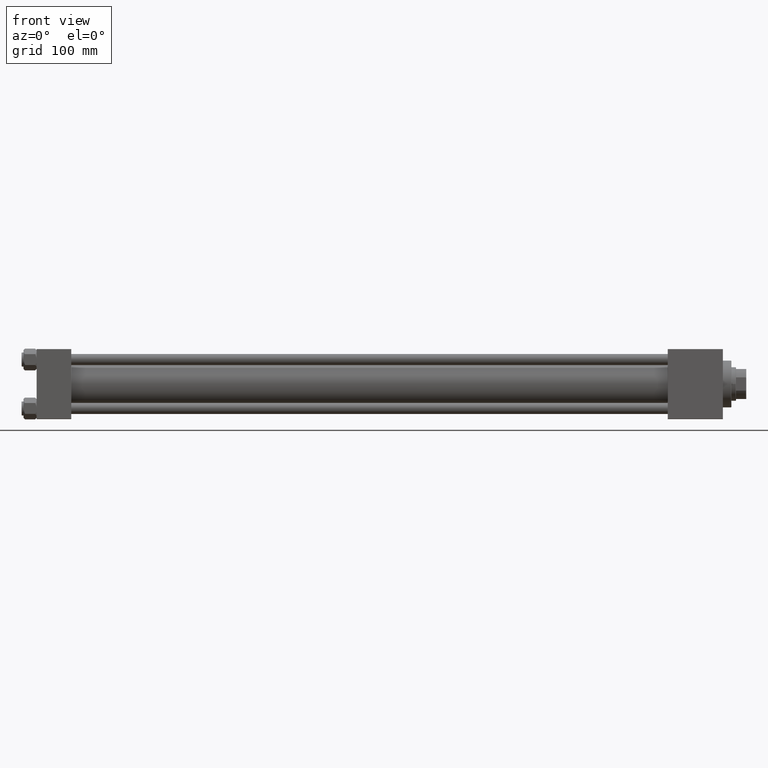
[diagram: clean part render]
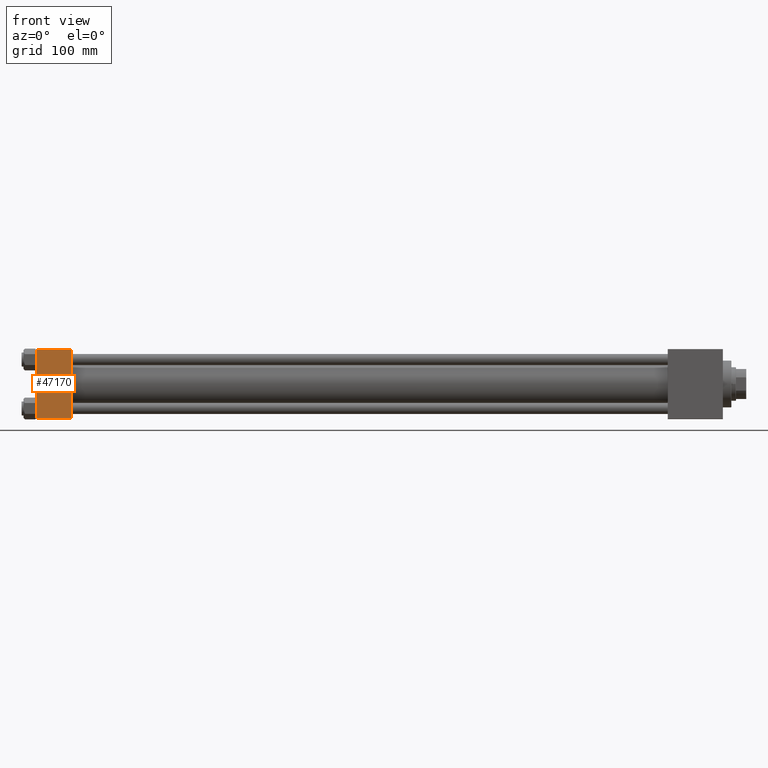
[diagram: same view with one face highlighted and labeled with its STEP entity id]
A machine part, front view. The second image highlights one B-rep face of the part: STEP entity #47170.
In plain terms, the highlighted planar face has unit normal (0, 1, 0).
Its self-contained STEP definition (entity closure, byte-faithful):
#1727 = EDGE_CURVE ( 'NONE', #26554, #6589, #7459, .T. ) ;
#2427 = EDGE_CURVE ( 'NONE', #32340, #6589, #20819, .T. ) ;
#6589 = VERTEX_POINT ( 'NONE', #40590 ) ;
#7209 = CARTESIAN_POINT ( 'NONE',  ( 37.00000000000000000, -37.50000000000000000, -37.00000000000003553 ) ) ;
#7459 = LINE ( 'NONE', #7209, #24770 ) ;
#8704 = CARTESIAN_POINT ( 'NONE',  ( 37.00000000000000000, -37.50000000000000711, 37.49999999999999289 ) ) ;
#9709 = CARTESIAN_POINT ( 'NONE',  ( 0.000000000000000000, -37.50000000000000711, 37.49999999999999289 ) ) ;
#10202 = VECTOR ( 'NONE', #25148, 1000.000000000000000 ) ;
#11786 = EDGE_CURVE ( 'NONE', #15703, #26554, #29021, .T. ) ;
#12269 = DIRECTION ( 'NONE',  ( -0.000000000000000000, 1.000000000000000000, 9.251858538542971581E-17 ) ) ;
#13073 = LINE ( 'NONE', #47097, #45936 ) ;
#15703 = VERTEX_POINT ( 'NONE', #28386 ) ;
#17514 = CARTESIAN_POINT ( 'NONE',  ( 37.00000000000000000, -37.50000000000000711, 37.49999999999999289 ) ) ;
#19881 = PLANE ( 'NONE',  #24164 ) ;
#20819 = LINE ( 'NONE', #17514, #10202 ) ;
#24164 = AXIS2_PLACEMENT_3D ( 'NONE', #8704, #12269, #35887 ) ;
#24770 = VECTOR ( 'NONE', #26250, 1000.000000000000000 ) ;
#24993 = ORIENTED_EDGE ( 'NONE', *, *, #2427, .F. ) ;
#25148 = DIRECTION ( 'NONE',  ( 0.000000000000000000, 9.251858538542971581E-17, -1.000000000000000000 ) ) ;
#26250 = DIRECTION ( 'NONE',  ( 1.000000000000000000, 0.000000000000000000, 0.000000000000000000 ) ) ;
#26554 = VERTEX_POINT ( 'NONE', #33307 ) ;
#27950 = ORIENTED_EDGE ( 'NONE', *, *, #43271, .T. ) ;
#28386 = CARTESIAN_POINT ( 'NONE',  ( 0.000000000000000000, -37.50000000000000711, 36.99999999999999289 ) ) ;
#29021 = LINE ( 'NONE', #9709, #35526 ) ;
#29115 = CARTESIAN_POINT ( 'NONE',  ( 37.00000000000000000, -37.50000000000000711, 36.99999999999999289 ) ) ;
#32340 = VERTEX_POINT ( 'NONE', #29115 ) ;
#32699 = ORIENTED_EDGE ( 'NONE', *, *, #1727, .T. ) ;
#33064 = ORIENTED_EDGE ( 'NONE', *, *, #11786, .T. ) ;
#33307 = CARTESIAN_POINT ( 'NONE',  ( 0.000000000000000000, -37.50000000000000000, -37.00000000000003553 ) ) ;
#33569 = DIRECTION ( 'NONE',  ( 0.000000000000000000, 9.251858538542971581E-17, -1.000000000000000000 ) ) ;
#35526 = VECTOR ( 'NONE', #33569, 1000.000000000000000 ) ;
#35636 = FACE_OUTER_BOUND ( 'NONE', #39487, .T. ) ;
#35887 = DIRECTION ( 'NONE',  ( 0.000000000000000000, -9.251858538542971581E-17, 1.000000000000000000 ) ) ;
#39487 = EDGE_LOOP ( 'NONE', ( #33064, #32699, #24993, #27950 ) ) ;
#40590 = CARTESIAN_POINT ( 'NONE',  ( 37.00000000000000000, -37.50000000000000000, -37.00000000000003553 ) ) ;
#43271 = EDGE_CURVE ( 'NONE', #32340, #15703, #13073, .T. ) ;
#45936 = VECTOR ( 'NONE', #48105, 1000.000000000000000 ) ;
#47097 = CARTESIAN_POINT ( 'NONE',  ( 37.00000000000000000, -37.50000000000000711, 36.99999999999999289 ) ) ;
#47170 = ADVANCED_FACE ( 'NONE', ( #35636 ), #19881, .F. ) ;
#48105 = DIRECTION ( 'NONE',  ( -1.000000000000000000, 0.000000000000000000, 0.000000000000000000 ) ) ;